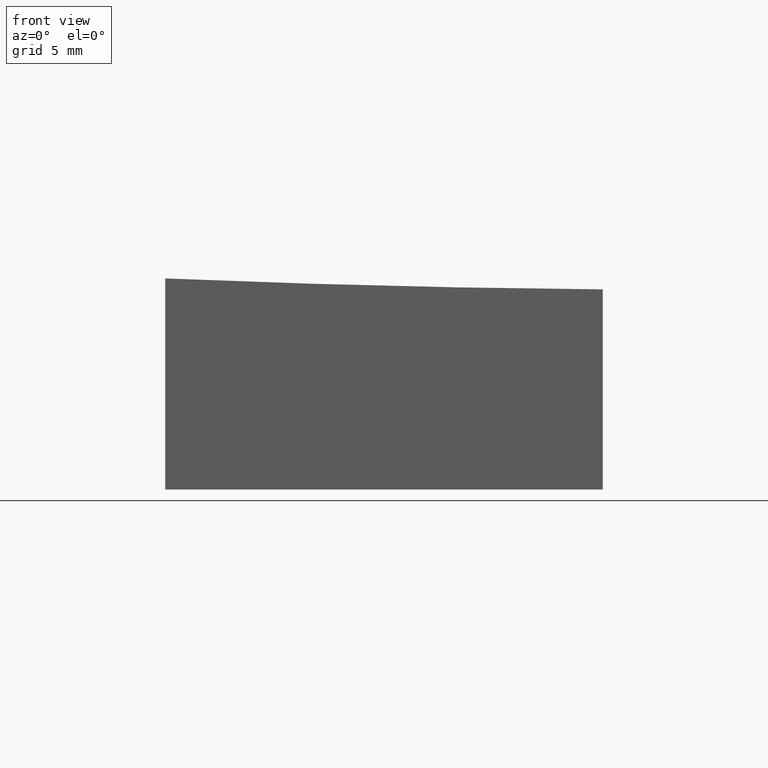
[diagram: clean part render]
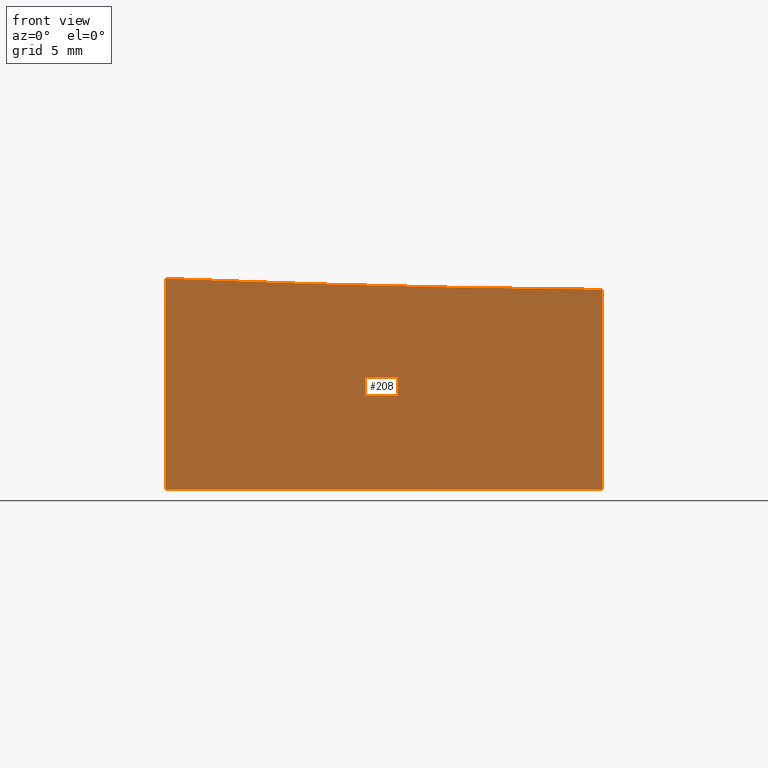
[diagram: same view with one face highlighted and labeled with its STEP entity id]
A machine part, front view. The second image highlights one B-rep face of the part: STEP entity #208.
In plain terms, the highlighted planar face has unit normal (-0, 1, 0).
Its self-contained STEP definition (entity closure, byte-faithful):
#14 = DIRECTION ( 'NONE',  ( -0.000000000000000000, -0.000000000000000000, -1.000000000000000000 ) ) ;
#34 = LINE ( 'NONE', #58, #88 ) ;
#35 = DIRECTION ( 'NONE',  ( -1.734723475976807094E-16, 1.000000000000000000, 0.000000000000000000 ) ) ;
#37 = CARTESIAN_POINT ( 'NONE',  ( 10.00000000000000178, -12.50000000000000000, -10.00000000000000000 ) ) ;
#42 = ORIENTED_EDGE ( 'NONE', *, *, #220, .T. ) ;
#45 = AXIS2_PLACEMENT_3D ( 'NONE', #151, #254, #236 ) ;
#49 = DIRECTION ( 'NONE',  ( -0.000000000000000000, -0.000000000000000000, -1.000000000000000000 ) ) ;
#58 = CARTESIAN_POINT ( 'NONE',  ( -9.999999999999998224, -12.50000000000000355, 10.00000000000000000 ) ) ;
#59 = PLANE ( 'NONE',  #45 ) ;
#68 = EDGE_CURVE ( 'NONE', #212, #240, #223, .T. ) ;
#79 = FACE_OUTER_BOUND ( 'NONE', #87, .T. ) ;
#80 = CARTESIAN_POINT ( 'NONE',  ( -10.00000000000000000, -12.50000000000000355, -0.3486047368425060355 ) ) ;
#82 = ORIENTED_EDGE ( 'NONE', *, *, #204, .T. ) ;
#87 = EDGE_LOOP ( 'NONE', ( #116, #42, #217, #82 ) ) ;
#88 = VECTOR ( 'NONE', #14, 1000.000000000000000 ) ;
#101 = AXIS2_PLACEMENT_3D ( 'NONE', #102, #35, #170 ) ;
#102 = CARTESIAN_POINT ( 'NONE',  ( 15.00000000000007816, -12.49999999999999822, 599.0000000000000000 ) ) ;
#105 = VECTOR ( 'NONE', #148, 1000.000000000000000 ) ;
#116 = ORIENTED_EDGE ( 'NONE', *, *, #68, .F. ) ;
#127 = VERTEX_POINT ( 'NONE', #205 ) ;
#129 = CARTESIAN_POINT ( 'NONE',  ( 10.00000000000000178, -12.50000000000000000, -0.8489393172249615205 ) ) ;
#148 = DIRECTION ( 'NONE',  ( 1.000000000000000000, 1.734723475976807094E-16, -0.000000000000000000 ) ) ;
#151 = CARTESIAN_POINT ( 'NONE',  ( 10.00000000000000178, -12.50000000000000000, 10.00000000000000000 ) ) ;
#157 = CIRCLE ( 'NONE', #101, 599.8697775350912025 ) ;
#169 = CARTESIAN_POINT ( 'NONE',  ( 10.00000000000000178, -12.50000000000000000, -10.00000000000000000 ) ) ;
#170 = DIRECTION ( 'NONE',  ( -1.000000000000000000, -1.735100057654092364E-16, 0.000000000000000000 ) ) ;
#204 = EDGE_CURVE ( 'NONE', #127, #240, #272, .T. ) ;
#205 = CARTESIAN_POINT ( 'NONE',  ( -9.999999999999998224, -12.50000000000000355, -10.00000000000000000 ) ) ;
#208 = ADVANCED_FACE ( 'NONE', ( #79 ), #59, .F. ) ;
#212 = VERTEX_POINT ( 'NONE', #129 ) ;
#217 = ORIENTED_EDGE ( 'NONE', *, *, #221, .T. ) ;
#220 = EDGE_CURVE ( 'NONE', #212, #277, #157, .T. ) ;
#221 = EDGE_CURVE ( 'NONE', #277, #127, #34, .T. ) ;
#223 = LINE ( 'NONE', #265, #259 ) ;
#236 = DIRECTION ( 'NONE',  ( -1.000000000000000000, -1.734723475976807094E-16, 0.000000000000000000 ) ) ;
#240 = VERTEX_POINT ( 'NONE', #169 ) ;
#254 = DIRECTION ( 'NONE',  ( -1.734723475976807094E-16, 1.000000000000000000, 0.000000000000000000 ) ) ;
#259 = VECTOR ( 'NONE', #49, 1000.000000000000000 ) ;
#265 = CARTESIAN_POINT ( 'NONE',  ( 10.00000000000000178, -12.50000000000000000, 10.00000000000000000 ) ) ;
#272 = LINE ( 'NONE', #37, #105 ) ;
#277 = VERTEX_POINT ( 'NONE', #80 ) ;